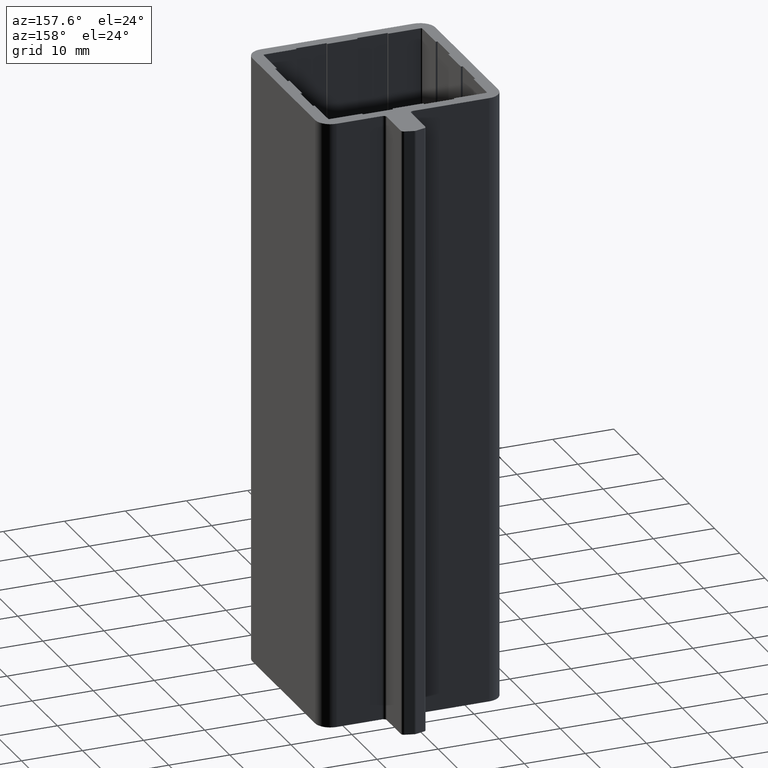
[diagram: clean part render]
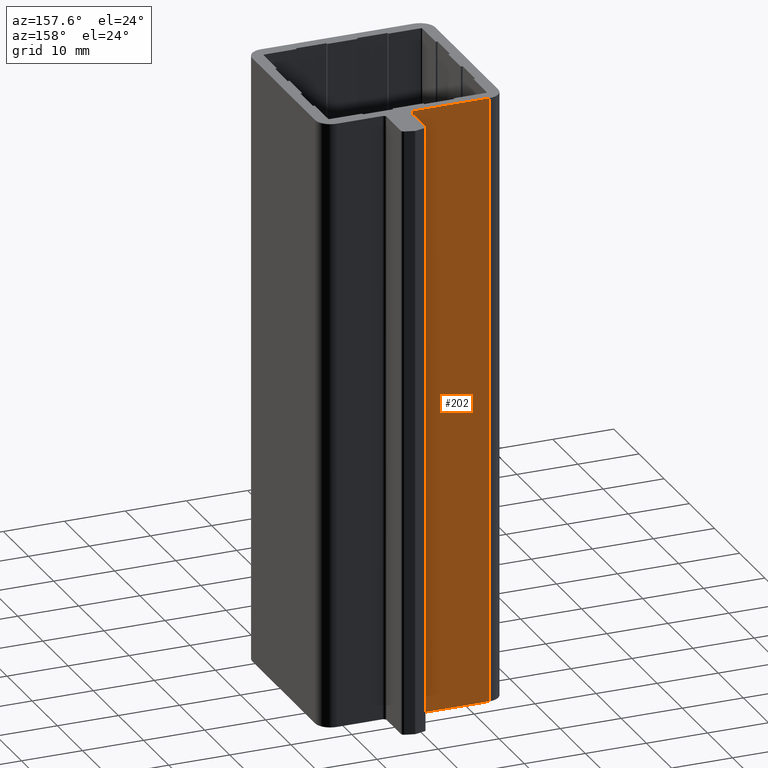
[diagram: same view with one face highlighted and labeled with its STEP entity id]
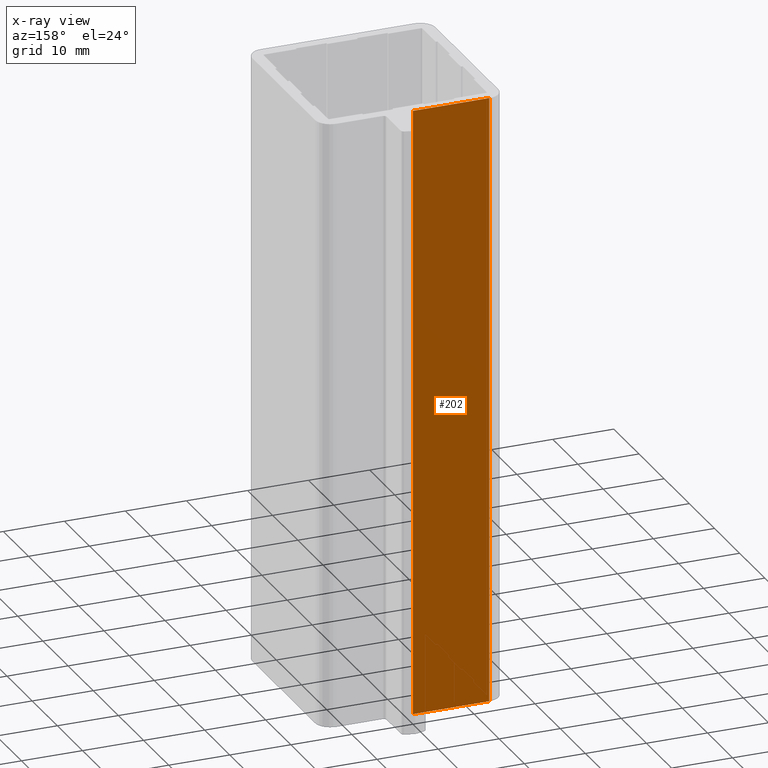
[diagram: x-ray of the same camera — body ghosted, the highlighted face saturated]
A machine part, auxiliary view. The second image highlights one B-rep face of the part: STEP entity #202.
The next image is the same camera in x-ray: the body ghosted, the highlighted face saturated — about 0% of this face is hidden behind the body in this view.
In plain terms, the highlighted planar face has unit normal (0, -1, 0).
Its self-contained STEP definition (entity closure, byte-faithful):
#145=CARTESIAN_POINT('',(-1.523404E-011,29.999999999969759,0.0));
#146=VERTEX_POINT('',#145);
#154=CARTESIAN_POINT('',(-1.523404E-011,29.999999999969759,100.0));
#155=VERTEX_POINT('',#154);
#156=CARTESIAN_POINT('',(-1.523404E-011,29.999999999969759,100.0));
#157=DIRECTION('',(0.0,0.0,-1.0));
#158=VECTOR('',#157,100.0);
#159=LINE('',#156,#158);
#160=EDGE_CURVE('',#155,#146,#159,.T.);
#172=CARTESIAN_POINT('',(-1.523404E-011,29.999999999969759,100.0));
#173=DIRECTION('',(0.0,-1.0,0.0));
#174=DIRECTION('',(-1.0,0.0,0.0));
#175=AXIS2_PLACEMENT_3D('',#172,#173,#174);
#176=PLANE('',#175);
#177=ORIENTED_EDGE('',*,*,#160,.T.);
#178=CARTESIAN_POINT('',(-12.499999999987551,29.999999999969305,0.0));
#179=VERTEX_POINT('',#178);
#180=CARTESIAN_POINT('',(-1.523404E-011,29.999999999969759,0.0));
#181=DIRECTION('',(-1.0,0.0,0.0));
#182=VECTOR('',#181,12.499999999972317);
#183=LINE('',#180,#182);
#184=EDGE_CURVE('',#146,#179,#183,.T.);
#185=ORIENTED_EDGE('',*,*,#184,.T.);
#186=CARTESIAN_POINT('',(-12.499999999987551,29.999999999969305,100.0));
#187=VERTEX_POINT('',#186);
#188=CARTESIAN_POINT('',(-12.499999999987551,29.999999999969305,100.0));
#189=DIRECTION('',(0.0,0.0,-1.0));
#190=VECTOR('',#189,100.0);
#191=LINE('',#188,#190);
#192=EDGE_CURVE('',#187,#179,#191,.T.);
#193=ORIENTED_EDGE('',*,*,#192,.F.);
#194=CARTESIAN_POINT('',(-1.523404E-011,29.999999999969759,100.0));
#195=DIRECTION('',(-1.0,0.0,0.0));
#196=VECTOR('',#195,12.499999999972317);
#197=LINE('',#194,#196);
#198=EDGE_CURVE('',#155,#187,#197,.T.);
#199=ORIENTED_EDGE('',*,*,#198,.F.);
#200=EDGE_LOOP('',(#177,#185,#193,#199));
#201=FACE_OUTER_BOUND('',#200,.T.);
#202=ADVANCED_FACE('',(#201),#176,.F.);